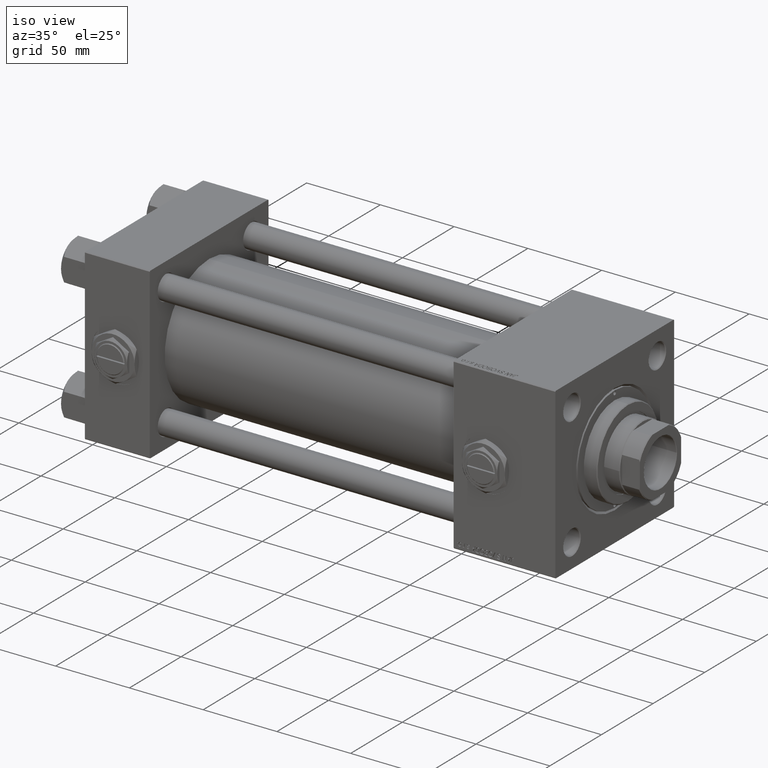
[diagram: clean part render]
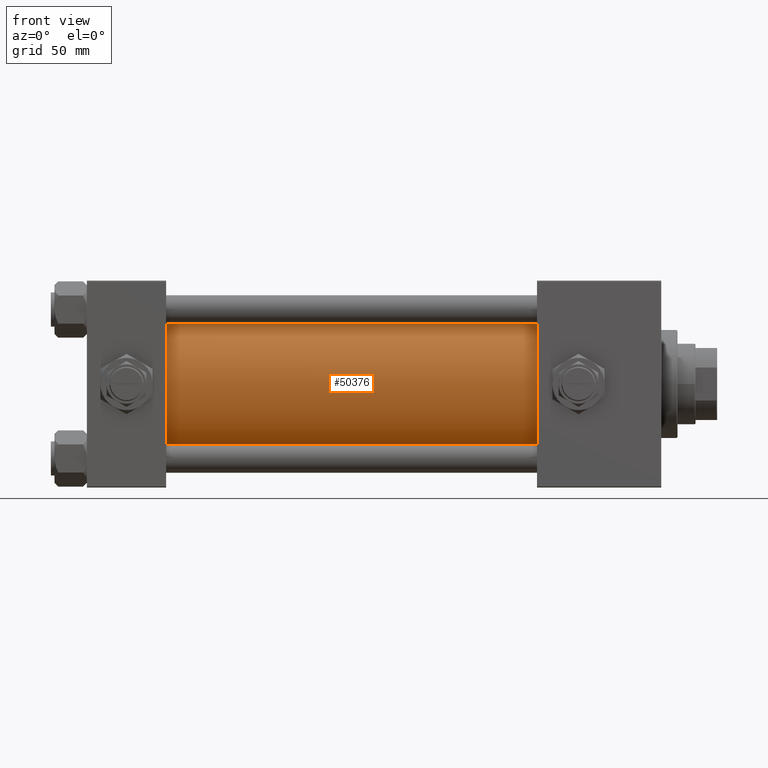
[diagram: tour spotlight — one face highlighted and labeled with its STEP entity id]
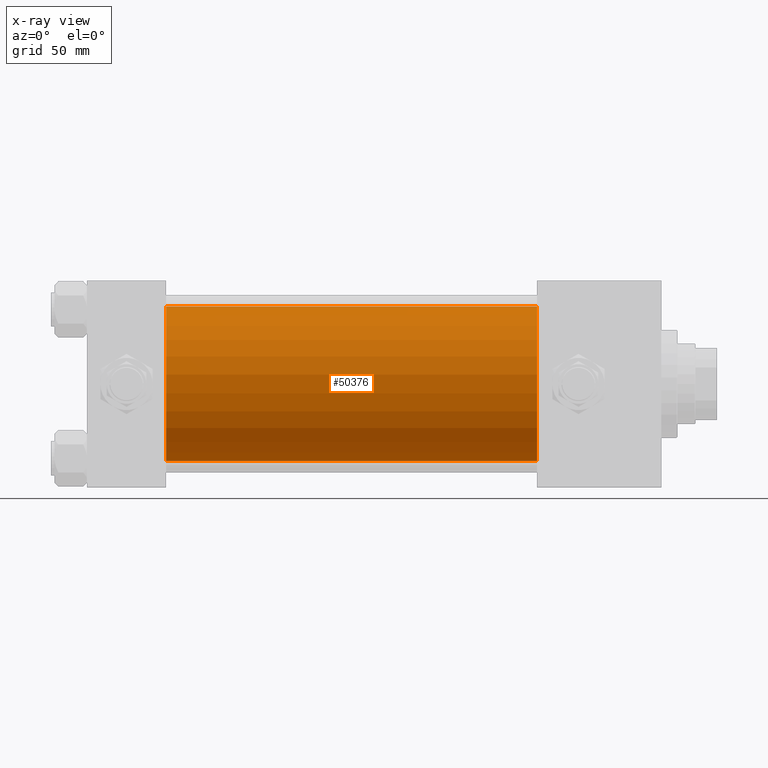
[diagram: x-ray of the same camera — body ghosted, this tour face saturated]
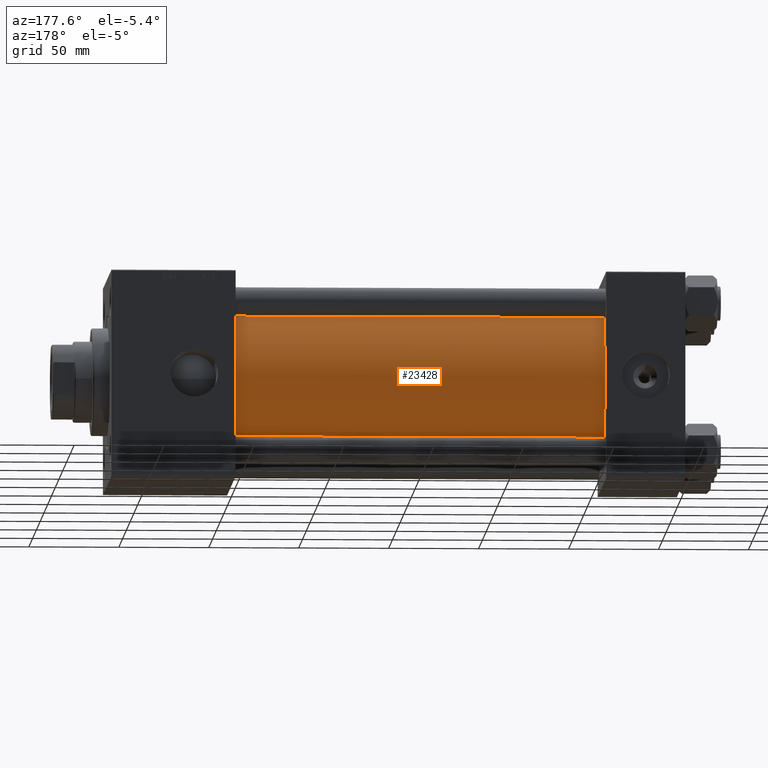
[diagram: tour spotlight — one face highlighted and labeled with its STEP entity id]
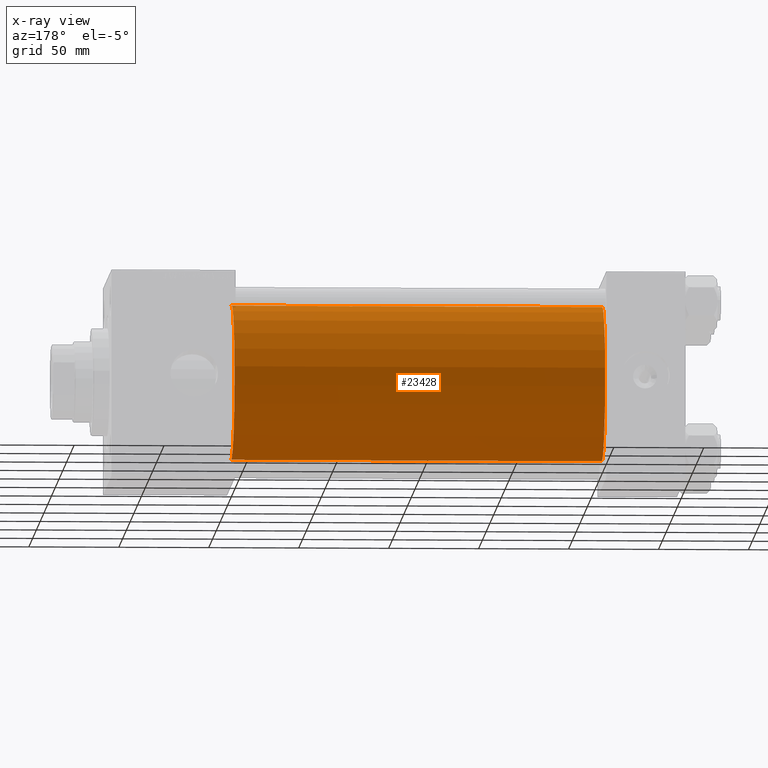
[diagram: x-ray of the same camera — body ghosted, this tour face saturated]
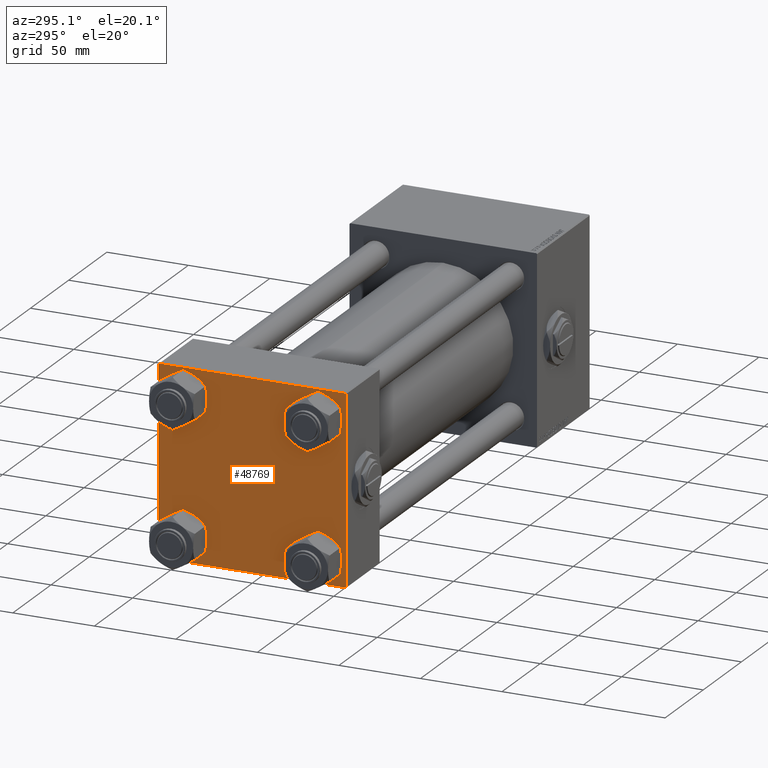
[diagram: tour spotlight — one face highlighted and labeled with its STEP entity id]
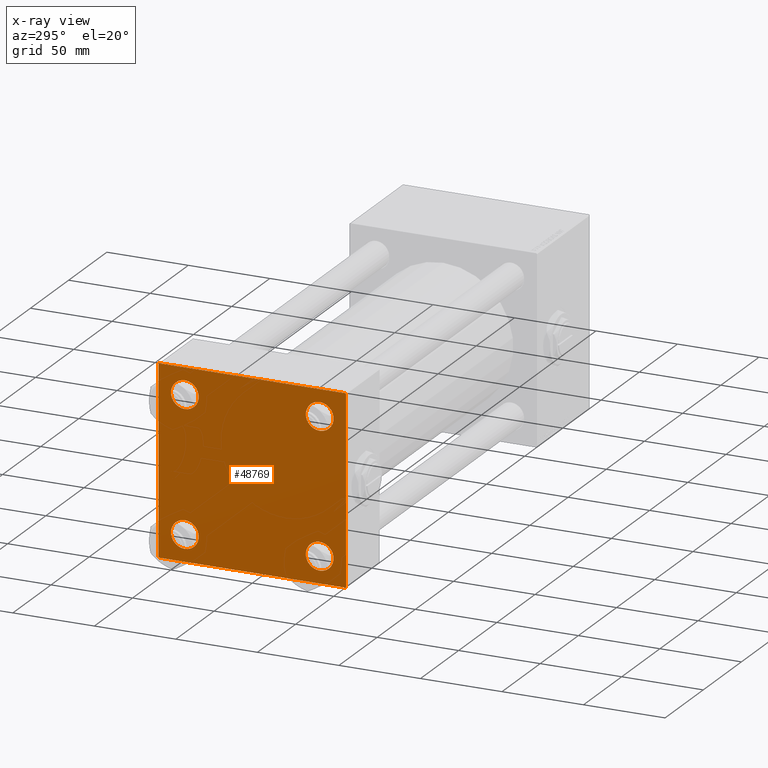
[diagram: x-ray of the same camera — body ghosted, this tour face saturated]
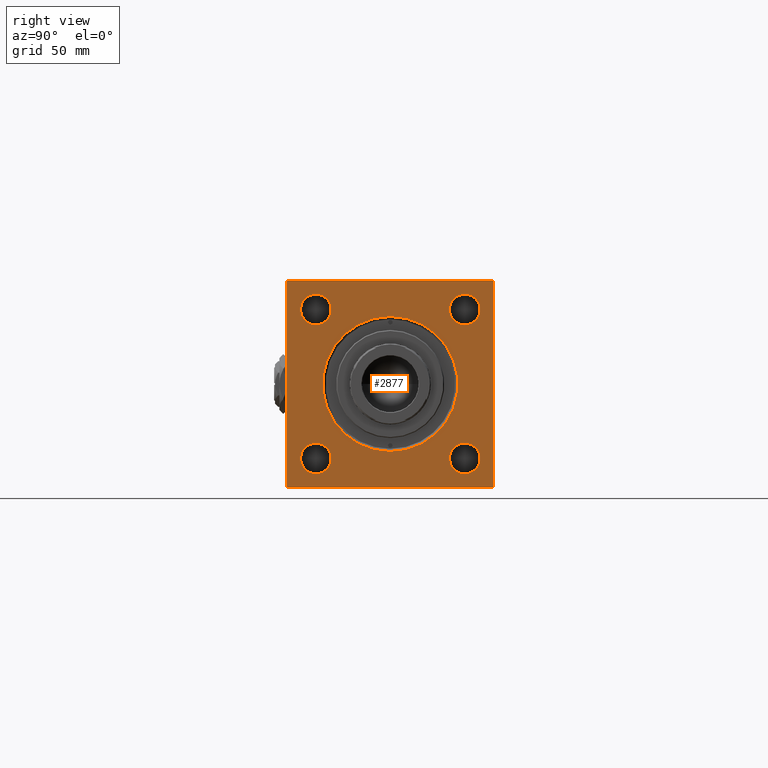
[diagram: tour spotlight — one face highlighted and labeled with its STEP entity id]
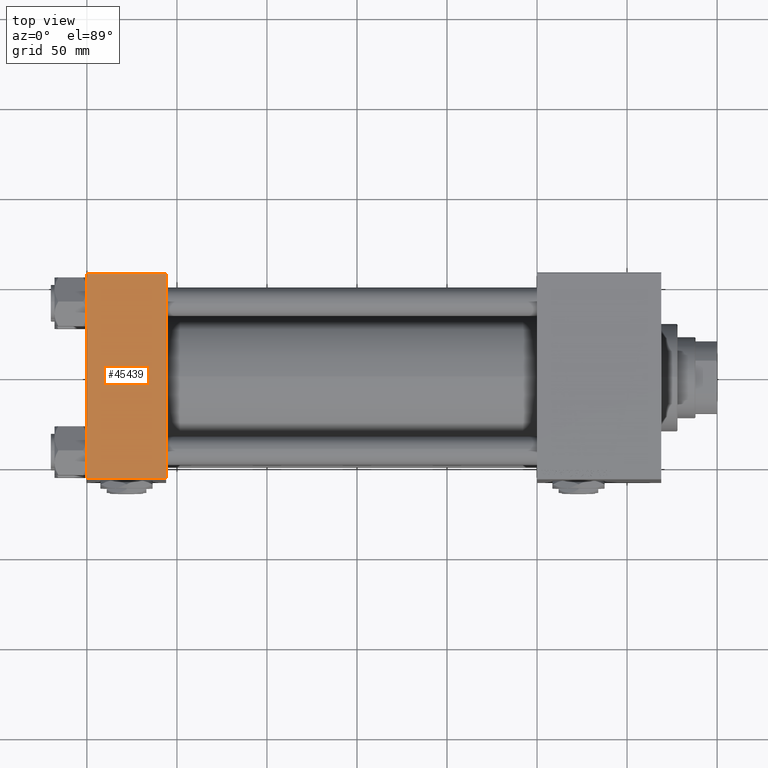
[diagram: tour spotlight — one face highlighted and labeled with its STEP entity id]
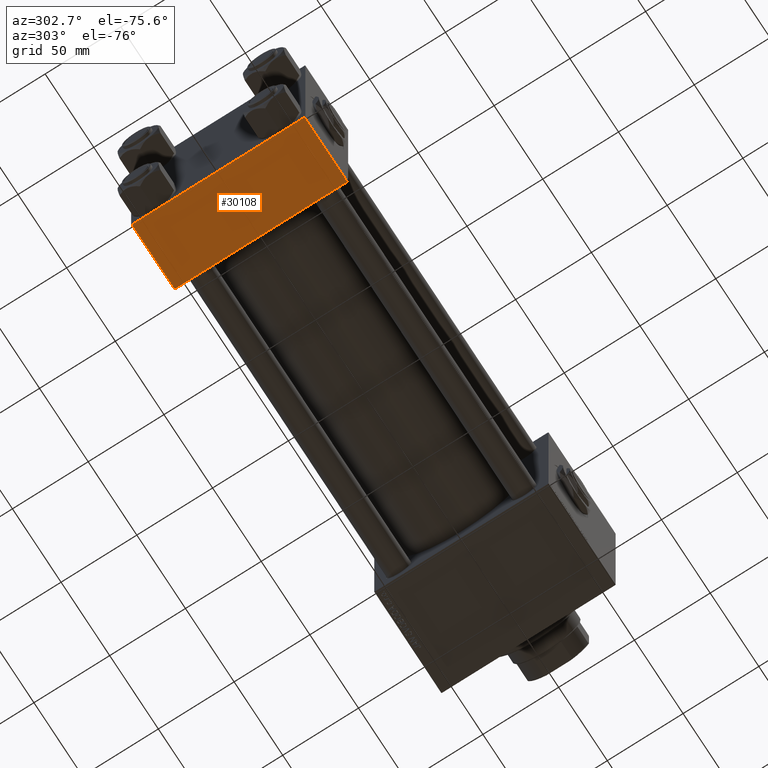
[diagram: tour spotlight — one face highlighted and labeled with its STEP entity id]
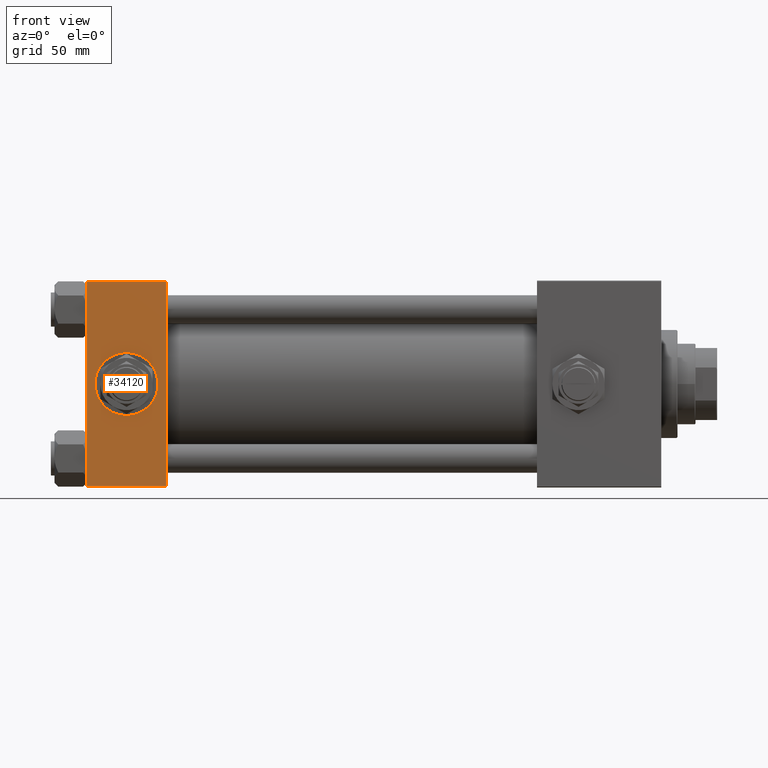
[diagram: tour spotlight — one face highlighted and labeled with its STEP entity id]
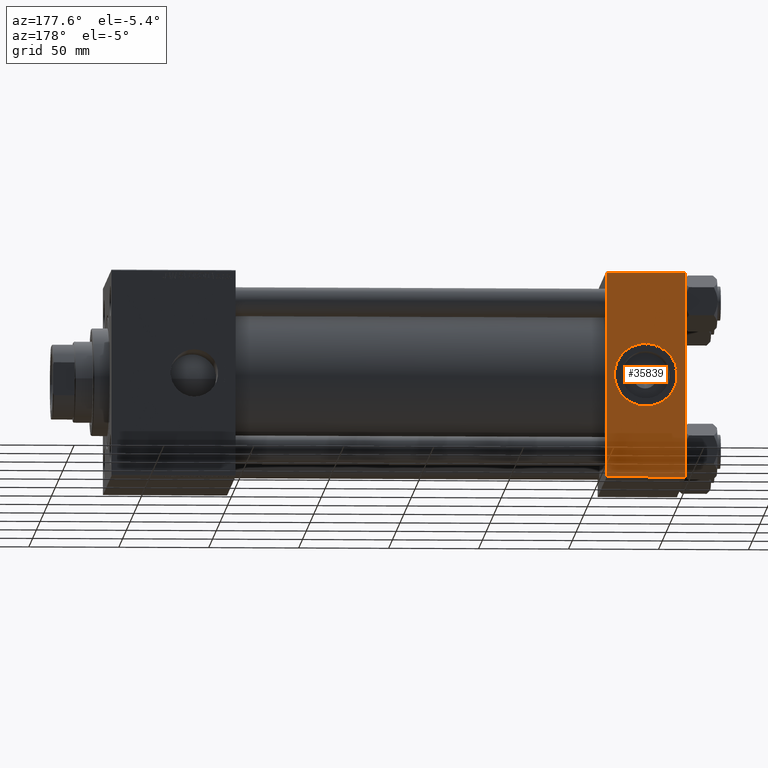
[diagram: tour spotlight — one face highlighted and labeled with its STEP entity id]
A machine part: a face-by-face anatomy tour. The part has 1303 B-rep faces; the first image is the clean iso view, then the 8 largest visible faces are spotlighted one at a time (largest first), each with its STEP entity span.

Face 1 — front view, entity #50376. An x-ray twin of the same camera follows (body ghosted, this face saturated) — the face is partly hidden behind the body. In plain terms, the highlighted cylindrical surface (partial cylindrical patch) has radius 43 mm, axis along (-1, -0, -0).
Definition (entity closure, byte-faithful):
#370 = DIRECTION ( 'NONE',  ( 1.000000000000000000, 0.000000000000000000, 0.000000000000000000 ) ) ;
#1475 = VERTEX_POINT ( 'NONE', #41350 ) ;
#2061 = EDGE_CURVE ( 'NONE', #49368, #8360, #33152, .T. ) ;
#3860 = CARTESIAN_POINT ( 'NONE',  ( 250.0000000000000000, -2.602085213965210642E-15, 0.000000000000000000 ) ) ;
#4079 = DIRECTION ( 'NONE',  ( 0.000000000000000000, 0.000000000000000000, 1.000000000000000000 ) ) ;
#6120 = ORIENTED_EDGE ( 'NONE', *, *, #35254, .T. ) ;
#6446 = CARTESIAN_POINT ( 'NONE',  ( 250.0000000000000000, -2.602085213965210642E-15, 43.00000000000000000 ) ) ;
#6537 = VECTOR ( 'NONE', #38216, 1000.000000000000000 ) ;
#6977 = LINE ( 'NONE', #6446, #6537 ) ;
#7298 = CYLINDRICAL_SURFACE ( 'NONE', #35507, 43.00000000000000000 ) ;
#7823 = DIRECTION ( 'NONE',  ( -1.000000000000000000, -0.000000000000000000, -0.000000000000000000 ) ) ;
#8292 = ORIENTED_EDGE ( 'NONE', *, *, #50975, .T. ) ;
#8360 = VERTEX_POINT ( 'NONE', #50004 ) ;
#19317 = FACE_OUTER_BOUND ( 'NONE', #49212, .T. ) ;
#20075 = DIRECTION ( 'NONE',  ( 0.000000000000000000, 0.000000000000000000, 1.000000000000000000 ) ) ;
#22447 = DIRECTION ( 'NONE',  ( -1.000000000000000000, -0.000000000000000000, -0.000000000000000000 ) ) ;
#23585 = CARTESIAN_POINT ( 'NONE',  ( 250.0000000000000000, -2.602085213965210642E-15, 0.000000000000000000 ) ) ;
#24984 = EDGE_CURVE ( 'NONE', #1475, #49368, #49944, .T. ) ;
#25295 = CARTESIAN_POINT ( 'NONE',  ( 43.99999999999998579, -2.602085213965210642E-15, 43.00000000000000000 ) ) ;
#25719 = AXIS2_PLACEMENT_3D ( 'NONE', #32869, #31821, #20075 ) ;
#27898 = DIRECTION ( 'NONE',  ( 0.000000000000000000, 0.000000000000000000, -1.000000000000000000 ) ) ;
#31821 = DIRECTION ( 'NONE',  ( 1.000000000000000000, -0.000000000000000000, 0.000000000000000000 ) ) ;
#32869 = CARTESIAN_POINT ( 'NONE',  ( 43.99999999999998579, -2.602085213965210642E-15, 0.000000000000000000 ) ) ;
#33152 = LINE ( 'NONE', #50771, #33193 ) ;
#33193 = VECTOR ( 'NONE', #22447, 1000.000000000000000 ) ;
#35254 = EDGE_CURVE ( 'NONE', #51569, #8360, #49631, .T. ) ;
#35507 = AXIS2_PLACEMENT_3D ( 'NONE', #23585, #7823, #4079 ) ;
#38216 = DIRECTION ( 'NONE',  ( -1.000000000000000000, -0.000000000000000000, -0.000000000000000000 ) ) ;
#39700 = AXIS2_PLACEMENT_3D ( 'NONE', #3860, #370, #27898 ) ;
#41350 = CARTESIAN_POINT ( 'NONE',  ( 250.0000000000000000, -2.602085213965210642E-15, 43.00000000000000000 ) ) ;
#45660 = ORIENTED_EDGE ( 'NONE', *, *, #2061, .F. ) ;
#49212 = EDGE_LOOP ( 'NONE', ( #45660, #49367, #8292, #6120 ) ) ;
#49367 = ORIENTED_EDGE ( 'NONE', *, *, #24984, .F. ) ;
#49368 = VERTEX_POINT ( 'NONE', #51710 ) ;
#49631 = CIRCLE ( 'NONE', #25719, 43.00000000000000000 ) ;
#49944 = CIRCLE ( 'NONE', #39700, 43.00000000000000000 ) ;
#50004 = CARTESIAN_POINT ( 'NONE',  ( 43.99999999999998579, 2.663896022368408223E-15, -43.00000000000000000 ) ) ;
#50376 = ADVANCED_FACE ( 'NONE', ( #19317 ), #7298, .T. ) ;
#50771 = CARTESIAN_POINT ( 'NONE',  ( 250.0000000000000000, 2.663896022368408223E-15, -43.00000000000000000 ) ) ;
#50975 = EDGE_CURVE ( 'NONE', #1475, #51569, #6977, .T. ) ;
#51569 = VERTEX_POINT ( 'NONE', #25295 ) ;
#51710 = CARTESIAN_POINT ( 'NONE',  ( 250.0000000000000000, 2.663896022368408223E-15, -43.00000000000000000 ) ) ;

Face 2 — auxiliary view, entity #23428. An x-ray twin of the same camera follows (body ghosted, this face saturated) — the face is partly hidden behind the body. In plain terms, the highlighted cylindrical surface (partial cylindrical patch) has radius 43 mm, axis along (-1, -0, -0).
Definition (entity closure, byte-faithful):
#1475 = VERTEX_POINT ( 'NONE', #41350 ) ;
#2061 = EDGE_CURVE ( 'NONE', #49368, #8360, #33152, .T. ) ;
#2850 = ORIENTED_EDGE ( 'NONE', *, *, #27557, .T. ) ;
#2866 = DIRECTION ( 'NONE',  ( 0.000000000000000000, 0.000000000000000000, 1.000000000000000000 ) ) ;
#6341 = AXIS2_PLACEMENT_3D ( 'NONE', #32246, #35984, #49079 ) ;
#6446 = CARTESIAN_POINT ( 'NONE',  ( 250.0000000000000000, -2.602085213965210642E-15, 43.00000000000000000 ) ) ;
#6537 = VECTOR ( 'NONE', #38216, 1000.000000000000000 ) ;
#6977 = LINE ( 'NONE', #6446, #6537 ) ;
#8255 = CIRCLE ( 'NONE', #16787, 43.00000000000000000 ) ;
#8360 = VERTEX_POINT ( 'NONE', #50004 ) ;
#13682 = CARTESIAN_POINT ( 'NONE',  ( 250.0000000000000000, -2.602085213965210642E-15, 0.000000000000000000 ) ) ;
#16787 = AXIS2_PLACEMENT_3D ( 'NONE', #31171, #47473, #2866 ) ;
#22447 = DIRECTION ( 'NONE',  ( -1.000000000000000000, -0.000000000000000000, -0.000000000000000000 ) ) ;
#23428 = ADVANCED_FACE ( 'NONE', ( #40691 ), #24929, .T. ) ;
#24929 = CYLINDRICAL_SURFACE ( 'NONE', #34542, 43.00000000000000000 ) ;
#25295 = CARTESIAN_POINT ( 'NONE',  ( 43.99999999999998579, -2.602085213965210642E-15, 43.00000000000000000 ) ) ;
#27557 = EDGE_CURVE ( 'NONE', #8360, #51569, #8255, .T. ) ;
#29370 = CIRCLE ( 'NONE', #6341, 43.00000000000000000 ) ;
#31171 = CARTESIAN_POINT ( 'NONE',  ( 43.99999999999998579, -2.602085213965210642E-15, 0.000000000000000000 ) ) ;
#32246 = CARTESIAN_POINT ( 'NONE',  ( 250.0000000000000000, -2.602085213965210642E-15, 0.000000000000000000 ) ) ;
#33152 = LINE ( 'NONE', #50771, #33193 ) ;
#33193 = VECTOR ( 'NONE', #22447, 1000.000000000000000 ) ;
#34542 = AXIS2_PLACEMENT_3D ( 'NONE', #13682, #45220, #45749 ) ;
#35984 = DIRECTION ( 'NONE',  ( 1.000000000000000000, 0.000000000000000000, 0.000000000000000000 ) ) ;
#38216 = DIRECTION ( 'NONE',  ( -1.000000000000000000, -0.000000000000000000, -0.000000000000000000 ) ) ;
#40691 = FACE_OUTER_BOUND ( 'NONE', #43405, .T. ) ;
#41350 = CARTESIAN_POINT ( 'NONE',  ( 250.0000000000000000, -2.602085213965210642E-15, 43.00000000000000000 ) ) ;
#43405 = EDGE_LOOP ( 'NONE', ( #50648, #50166, #2850, #49881 ) ) ;
#44471 = EDGE_CURVE ( 'NONE', #49368, #1475, #29370, .T. ) ;
#45220 = DIRECTION ( 'NONE',  ( -1.000000000000000000, -0.000000000000000000, -0.000000000000000000 ) ) ;
#45749 = DIRECTION ( 'NONE',  ( 0.000000000000000000, 0.000000000000000000, 1.000000000000000000 ) ) ;
#47473 = DIRECTION ( 'NONE',  ( 1.000000000000000000, -0.000000000000000000, 0.000000000000000000 ) ) ;
#49079 = DIRECTION ( 'NONE',  ( 0.000000000000000000, 0.000000000000000000, -1.000000000000000000 ) ) ;
#49368 = VERTEX_POINT ( 'NONE', #51710 ) ;
#49881 = ORIENTED_EDGE ( 'NONE', *, *, #50975, .F. ) ;
#50004 = CARTESIAN_POINT ( 'NONE',  ( 43.99999999999998579, 2.663896022368408223E-15, -43.00000000000000000 ) ) ;
#50166 = ORIENTED_EDGE ( 'NONE', *, *, #2061, .T. ) ;
#50648 = ORIENTED_EDGE ( 'NONE', *, *, #44471, .F. ) ;
#50771 = CARTESIAN_POINT ( 'NONE',  ( 250.0000000000000000, 2.663896022368408223E-15, -43.00000000000000000 ) ) ;
#50975 = EDGE_CURVE ( 'NONE', #1475, #51569, #6977, .T. ) ;
#51569 = VERTEX_POINT ( 'NONE', #25295 ) ;
#51710 = CARTESIAN_POINT ( 'NONE',  ( 250.0000000000000000, 2.663896022368408223E-15, -43.00000000000000000 ) ) ;

Face 3 — auxiliary view, entity #48769. An x-ray twin of the same camera follows (body ghosted, this face saturated) — the face is partly hidden behind the body. In plain terms, the highlighted planar face has unit normal (-1, 0, 0).
Definition (entity closure, byte-faithful):
#149 = ORIENTED_EDGE ( 'NONE', *, *, #30968, .F. ) ;
#270 = EDGE_LOOP ( 'NONE', ( #36978, #52524 ) ) ;
#632 = CARTESIAN_POINT ( 'NONE',  ( 0.000000000000000000, 41.34999999999999432, -41.35000000000000142 ) ) ;
#1173 = EDGE_CURVE ( 'NONE', #3098, #27415, #33658, .T. ) ;
#1867 = VERTEX_POINT ( 'NONE', #11032 ) ;
#2163 = CARTESIAN_POINT ( 'NONE',  ( 0.000000000000000000, 57.49999999999999289, -57.00000000000000711 ) ) ;
#3098 = VERTEX_POINT ( 'NONE', #4535 ) ;
#3807 = ORIENTED_EDGE ( 'NONE', *, *, #34464, .T. ) ;
#4535 = CARTESIAN_POINT ( 'NONE',  ( 0.000000000000000000, 57.00000000000000711, 57.50000000000000711 ) ) ;
#4804 = EDGE_CURVE ( 'NONE', #12306, #33489, #8450, .T. ) ;
#5926 = VECTOR ( 'NONE', #21382, 1000.000000000000114 ) ;
#6953 = DIRECTION ( 'NONE',  ( 0.000000000000000000, 0.000000000000000000, 1.000000000000000000 ) ) ;
#7313 = VECTOR ( 'NONE', #28176, 1000.000000000000114 ) ;
#7697 = LINE ( 'NONE', #23976, #36183 ) ;
#7911 = CIRCLE ( 'NONE', #28385, 8.499999999999992895 ) ;
#7950 = DIRECTION ( 'NONE',  ( 0.000000000000000000, 0.000000000000000000, -1.000000000000000000 ) ) ;
#8329 = CARTESIAN_POINT ( 'NONE',  ( 0.000000000000000000, -57.50000000000000711, 57.00000000000000711 ) ) ;
#8450 = CIRCLE ( 'NONE', #26320, 8.499999999999992895 ) ;
#8736 = LINE ( 'NONE', #11956, #11793 ) ;
#8783 = DIRECTION ( 'NONE',  ( -1.000000000000000000, 0.000000000000000000, -0.000000000000000000 ) ) ;
#9047 = FACE_BOUND ( 'NONE', #16436, .T. ) ;
#9099 = CARTESIAN_POINT ( 'NONE',  ( 0.000000000000000000, 57.25000000000081712, -57.24999999999922551 ) ) ;
#9751 = CIRCLE ( 'NONE', #39588, 8.499999999999992895 ) ;
#9803 = ORIENTED_EDGE ( 'NONE', *, *, #44560, .T. ) ;
#9832 = CARTESIAN_POINT ( 'NONE',  ( 0.000000000000000000, 0.000000000000000000, 0.000000000000000000 ) ) ;
#10524 = CARTESIAN_POINT ( 'NONE',  ( 0.000000000000000000, 41.34999999999999432, -41.35000000000000142 ) ) ;
#10550 = CARTESIAN_POINT ( 'NONE',  ( 0.000000000000000000, 41.34999999999999432, -49.85000000000000142 ) ) ;
#10954 = ORIENTED_EDGE ( 'NONE', *, *, #19065, .T. ) ;
#10990 = DIRECTION ( 'NONE',  ( 1.000000000000000000, -0.000000000000000000, 0.000000000000000000 ) ) ;
#11032 = CARTESIAN_POINT ( 'NONE',  ( 0.000000000000000000, -57.00000000000000711, -57.50000000000000711 ) ) ;
#11457 = CARTESIAN_POINT ( 'NONE',  ( 0.000000000000000000, 41.34999999999999432, 32.85000000000000853 ) ) ;
#11793 = VECTOR ( 'NONE', #7950, 1000.000000000000000 ) ;
#11956 = CARTESIAN_POINT ( 'NONE',  ( 0.000000000000000000, -57.50000000000000711, 57.49999999999999289 ) ) ;
#12306 = VERTEX_POINT ( 'NONE', #16176 ) ;
#12872 = VERTEX_POINT ( 'NONE', #11457 ) ;
#13040 = PLANE ( 'NONE',  #20115 ) ;
#13536 = ORIENTED_EDGE ( 'NONE', *, *, #4804, .T. ) ;
#13991 = CARTESIAN_POINT ( 'NONE',  ( 0.000000000000000000, -41.34999999999998721, 32.85000000000001563 ) ) ;
#14347 = CIRCLE ( 'NONE', #20339, 8.499999999999992895 ) ;
#15278 = VECTOR ( 'NONE', #20052, 1000.000000000000114 ) ;
#15344 = VERTEX_POINT ( 'NONE', #41245 ) ;
#15630 = LINE ( 'NONE', #40984, #7313 ) ;
#15721 = VECTOR ( 'NONE', #28687, 1000.000000000000114 ) ;
#16093 = DIRECTION ( 'NONE',  ( 1.000000000000000000, -0.000000000000000000, 0.000000000000000000 ) ) ;
#16176 = CARTESIAN_POINT ( 'NONE',  ( 0.000000000000000000, -41.34999999999998721, -49.85000000000000853 ) ) ;
#16350 = DIRECTION ( 'NONE',  ( 0.000000000000000000, 0.000000000000000000, 1.000000000000000000 ) ) ;
#16436 = EDGE_LOOP ( 'NONE', ( #38033, #10954 ) ) ;
#16575 = AXIS2_PLACEMENT_3D ( 'NONE', #19046, #31064, #42797 ) ;
#17589 = FACE_BOUND ( 'NONE', #22558, .T. ) ;
#17844 = FACE_OUTER_BOUND ( 'NONE', #51025, .T. ) ;
#18268 = DIRECTION ( 'NONE',  ( 0.000000000000000000, 0.000000000000000000, 1.000000000000000000 ) ) ;
#18516 = EDGE_CURVE ( 'NONE', #25564, #1867, #27512, .T. ) ;
#19046 = CARTESIAN_POINT ( 'NONE',  ( 0.000000000000000000, -41.34999999999998721, 41.35000000000000853 ) ) ;
#19065 = EDGE_CURVE ( 'NONE', #32487, #45191, #36191, .T. ) ;
#19198 = EDGE_CURVE ( 'NONE', #52588, #12872, #9751, .T. ) ;
#19333 = DIRECTION ( 'NONE',  ( 1.000000000000000000, -0.000000000000000000, 0.000000000000000000 ) ) ;
#19447 = VERTEX_POINT ( 'NONE', #38153 ) ;
#19784 = DIRECTION ( 'NONE',  ( 0.000000000000000000, 0.000000000000000000, 1.000000000000000000 ) ) ;
#19977 = DIRECTION ( 'NONE',  ( 0.000000000000000000, 0.000000000000000000, -1.000000000000000000 ) ) ;
#20052 = DIRECTION ( 'NONE',  ( -0.000000000000000000, 0.7071067811865376918, 0.7071067811865573427 ) ) ;
#20069 = DIRECTION ( 'NONE',  ( 0.000000000000000000, 0.000000000000000000, 1.000000000000000000 ) ) ;
#20115 = AXIS2_PLACEMENT_3D ( 'NONE', #9832, #8783, #21593 ) ;
#20200 = VERTEX_POINT ( 'NONE', #10550 ) ;
#20339 = AXIS2_PLACEMENT_3D ( 'NONE', #24052, #10990, #19784 ) ;
#20553 = DIRECTION ( 'NONE',  ( 0.000000000000000000, 0.000000000000000000, 1.000000000000000000 ) ) ;
#20953 = ORIENTED_EDGE ( 'NONE', *, *, #22110, .T. ) ;
#21066 = FACE_BOUND ( 'NONE', #270, .T. ) ;
#21190 = VECTOR ( 'NONE', #42196, 1000.000000000000000 ) ;
#21382 = DIRECTION ( 'NONE',  ( -0.000000000000000000, -0.7071067811865376918, -0.7071067811865573427 ) ) ;
#21593 = DIRECTION ( 'NONE',  ( -0.000000000000000000, 0.000000000000000000, 1.000000000000000000 ) ) ;
#22110 = EDGE_CURVE ( 'NONE', #3098, #19447, #15630, .T. ) ;
#22176 = CARTESIAN_POINT ( 'NONE',  ( 0.000000000000000000, 57.49999999999999289, 57.50000000000000711 ) ) ;
#22558 = EDGE_LOOP ( 'NONE', ( #37530, #13536 ) ) ;
#23976 = CARTESIAN_POINT ( 'NONE',  ( 0.000000000000000000, 57.49999999999999289, 57.50000000000000711 ) ) ;
#24052 = CARTESIAN_POINT ( 'NONE',  ( 0.000000000000000000, 41.34999999999999432, 41.35000000000000142 ) ) ;
#24273 = VECTOR ( 'NONE', #40311, 1000.000000000000000 ) ;
#24280 = VERTEX_POINT ( 'NONE', #25202 ) ;
#24704 = ORIENTED_EDGE ( 'NONE', *, *, #18516, .T. ) ;
#25202 = CARTESIAN_POINT ( 'NONE',  ( 0.000000000000000000, 41.34999999999999432, -32.85000000000000853 ) ) ;
#25382 = AXIS2_PLACEMENT_3D ( 'NONE', #10524, #19333, #18268 ) ;
#25560 = CIRCLE ( 'NONE', #45185, 8.499999999999992895 ) ;
#25564 = VERTEX_POINT ( 'NONE', #47973 ) ;
#26320 = AXIS2_PLACEMENT_3D ( 'NONE', #41882, #37613, #20553 ) ;
#27415 = VERTEX_POINT ( 'NONE', #28804 ) ;
#27499 = CARTESIAN_POINT ( 'NONE',  ( 0.000000000000000000, -41.34999999999998721, 41.35000000000000853 ) ) ;
#27512 = LINE ( 'NONE', #47825, #24273 ) ;
#27923 = CIRCLE ( 'NONE', #25382, 8.499999999999992895 ) ;
#28176 = DIRECTION ( 'NONE',  ( 0.000000000000000000, 0.7071067811865573427, -0.7071067811865376918 ) ) ;
#28337 = DIRECTION ( 'NONE',  ( 1.000000000000000000, -0.000000000000000000, 0.000000000000000000 ) ) ;
#28385 = AXIS2_PLACEMENT_3D ( 'NONE', #27499, #43522, #6953 ) ;
#28687 = DIRECTION ( 'NONE',  ( 0.000000000000000000, -0.7071067811865474617, 0.7071067811865474617 ) ) ;
#28804 = CARTESIAN_POINT ( 'NONE',  ( 0.000000000000000000, -57.00000000000003553, 57.49999999999999289 ) ) ;
#29169 = EDGE_CURVE ( 'NONE', #20200, #24280, #27923, .T. ) ;
#29386 = LINE ( 'NONE', #9099, #5926 ) ;
#30090 = ORIENTED_EDGE ( 'NONE', *, *, #31622, .T. ) ;
#30968 = EDGE_CURVE ( 'NONE', #45820, #15344, #8736, .T. ) ;
#31064 = DIRECTION ( 'NONE',  ( 1.000000000000000000, -0.000000000000000000, 0.000000000000000000 ) ) ;
#31548 = EDGE_CURVE ( 'NONE', #12872, #52588, #14347, .T. ) ;
#31622 = EDGE_CURVE ( 'NONE', #45820, #27415, #43818, .T. ) ;
#32452 = ORIENTED_EDGE ( 'NONE', *, *, #45532, .T. ) ;
#32487 = VERTEX_POINT ( 'NONE', #13991 ) ;
#33339 = EDGE_LOOP ( 'NONE', ( #45984, #46302 ) ) ;
#33489 = VERTEX_POINT ( 'NONE', #49763 ) ;
#33658 = LINE ( 'NONE', #22176, #21190 ) ;
#33663 = CIRCLE ( 'NONE', #37901, 8.499999999999992895 ) ;
#34332 = EDGE_CURVE ( 'NONE', #33489, #12306, #25560, .T. ) ;
#34464 = EDGE_CURVE ( 'NONE', #47708, #25564, #29386, .T. ) ;
#35806 = CARTESIAN_POINT ( 'NONE',  ( -0.000000000000000000, -57.25000000000081712, 57.24999999999922551 ) ) ;
#36183 = VECTOR ( 'NONE', #19977, 1000.000000000000000 ) ;
#36191 = CIRCLE ( 'NONE', #16575, 8.499999999999992895 ) ;
#36423 = LINE ( 'NONE', #49258, #15721 ) ;
#36860 = CARTESIAN_POINT ( 'NONE',  ( 0.000000000000000000, -41.34999999999998721, -41.35000000000000853 ) ) ;
#36978 = ORIENTED_EDGE ( 'NONE', *, *, #19198, .T. ) ;
#37530 = ORIENTED_EDGE ( 'NONE', *, *, #34332, .T. ) ;
#37536 = CARTESIAN_POINT ( 'NONE',  ( 0.000000000000000000, -41.34999999999998721, 49.85000000000000853 ) ) ;
#37613 = DIRECTION ( 'NONE',  ( 1.000000000000000000, -0.000000000000000000, 0.000000000000000000 ) ) ;
#37901 = AXIS2_PLACEMENT_3D ( 'NONE', #632, #41227, #44708 ) ;
#38033 = ORIENTED_EDGE ( 'NONE', *, *, #41788, .T. ) ;
#38153 = CARTESIAN_POINT ( 'NONE',  ( 0.000000000000000000, 57.49999999999999289, 57.00000000000003553 ) ) ;
#39588 = AXIS2_PLACEMENT_3D ( 'NONE', #52694, #16093, #16350 ) ;
#40311 = DIRECTION ( 'NONE',  ( 0.000000000000000000, -1.000000000000000000, -1.206764157201257045E-16 ) ) ;
#40984 = CARTESIAN_POINT ( 'NONE',  ( 0.000000000000000000, 57.24999999999922551, 57.25000000000081712 ) ) ;
#41172 = ORIENTED_EDGE ( 'NONE', *, *, #1173, .F. ) ;
#41227 = DIRECTION ( 'NONE',  ( 1.000000000000000000, -0.000000000000000000, 0.000000000000000000 ) ) ;
#41245 = CARTESIAN_POINT ( 'NONE',  ( 0.000000000000000000, -57.50000000000000711, -57.00000000000000711 ) ) ;
#41788 = EDGE_CURVE ( 'NONE', #45191, #32487, #7911, .T. ) ;
#41882 = CARTESIAN_POINT ( 'NONE',  ( 0.000000000000000000, -41.34999999999998721, -41.35000000000000853 ) ) ;
#42196 = DIRECTION ( 'NONE',  ( 0.000000000000000000, -1.000000000000000000, -1.206764157201257045E-16 ) ) ;
#42797 = DIRECTION ( 'NONE',  ( 0.000000000000000000, 0.000000000000000000, 1.000000000000000000 ) ) ;
#43522 = DIRECTION ( 'NONE',  ( 1.000000000000000000, -0.000000000000000000, 0.000000000000000000 ) ) ;
#43818 = LINE ( 'NONE', #35806, #15278 ) ;
#44560 = EDGE_CURVE ( 'NONE', #19447, #47708, #7697, .T. ) ;
#44708 = DIRECTION ( 'NONE',  ( 0.000000000000000000, 0.000000000000000000, 1.000000000000000000 ) ) ;
#45185 = AXIS2_PLACEMENT_3D ( 'NONE', #36860, #28337, #20069 ) ;
#45191 = VERTEX_POINT ( 'NONE', #37536 ) ;
#45532 = EDGE_CURVE ( 'NONE', #1867, #15344, #36423, .T. ) ;
#45820 = VERTEX_POINT ( 'NONE', #8329 ) ;
#45984 = ORIENTED_EDGE ( 'NONE', *, *, #46343, .T. ) ;
#46302 = ORIENTED_EDGE ( 'NONE', *, *, #29169, .T. ) ;
#46343 = EDGE_CURVE ( 'NONE', #24280, #20200, #33663, .T. ) ;
#46908 = CARTESIAN_POINT ( 'NONE',  ( 0.000000000000000000, 41.34999999999999432, 49.85000000000000142 ) ) ;
#47708 = VERTEX_POINT ( 'NONE', #2163 ) ;
#47825 = CARTESIAN_POINT ( 'NONE',  ( 0.000000000000000000, 57.49999999999999289, -57.49999999999999289 ) ) ;
#47973 = CARTESIAN_POINT ( 'NONE',  ( 0.000000000000000000, 57.00000000000002132, -57.49999999999999289 ) ) ;
#48769 = ADVANCED_FACE ( 'NONE', ( #9047, #17589, #50438, #21066, #17844 ), #13040, .T. ) ;
#49258 = CARTESIAN_POINT ( 'NONE',  ( 0.000000000000000000, -57.25000000000000711, -57.25000000000000711 ) ) ;
#49763 = CARTESIAN_POINT ( 'NONE',  ( 0.000000000000000000, -41.34999999999998721, -32.85000000000001563 ) ) ;
#50438 = FACE_BOUND ( 'NONE', #33339, .T. ) ;
#51025 = EDGE_LOOP ( 'NONE', ( #9803, #3807, #24704, #32452, #149, #30090, #41172, #20953 ) ) ;
#52524 = ORIENTED_EDGE ( 'NONE', *, *, #31548, .T. ) ;
#52588 = VERTEX_POINT ( 'NONE', #46908 ) ;
#52694 = CARTESIAN_POINT ( 'NONE',  ( 0.000000000000000000, 41.34999999999999432, 41.35000000000000142 ) ) ;

Face 4 — right view, entity #2877. In plain terms, the highlighted planar face has unit normal (-1, 0, 0).
Definition (entity closure, byte-faithful):
#32 = CARTESIAN_POINT ( 'NONE',  ( 319.0000000000000000, -57.49999999999999289, -56.99999999999997868 ) ) ;
#53 = VERTEX_POINT ( 'NONE', #15739 ) ;
#208 = AXIS2_PLACEMENT_3D ( 'NONE', #52733, #3582, #19876 ) ;
#1011 = DIRECTION ( 'NONE',  ( -1.000000000000000000, 0.000000000000000000, -0.000000000000000000 ) ) ;
#1156 = CIRCLE ( 'NONE', #3715, 8.500000000000007105 ) ;
#1388 = CIRCLE ( 'NONE', #32076, 8.500000000000007105 ) ;
#1842 = AXIS2_PLACEMENT_3D ( 'NONE', #14420, #22693, #38710 ) ;
#2017 = VERTEX_POINT ( 'NONE', #32 ) ;
#2104 = CARTESIAN_POINT ( 'NONE',  ( 319.0000000000000000, -57.49999999999999289, 57.49999999999999289 ) ) ;
#2240 = CARTESIAN_POINT ( 'NONE',  ( 319.0000000000000000, -57.49999999999999289, 57.00000000000004974 ) ) ;
#2877 = ADVANCED_FACE ( 'NONE', ( #42283, #20687, #9452, #16940, #50067, #29996 ), #29482, .F. ) ;
#3322 = CARTESIAN_POINT ( 'NONE',  ( 319.0000000000000000, 56.99999999999994316, -57.49999999999996447 ) ) ;
#3582 = DIRECTION ( 'NONE',  ( -1.000000000000000000, 0.000000000000000000, -0.000000000000000000 ) ) ;
#3715 = AXIS2_PLACEMENT_3D ( 'NONE', #44563, #52599, #7471 ) ;
#3756 = ORIENTED_EDGE ( 'NONE', *, *, #52389, .T. ) ;
#3806 = VERTEX_POINT ( 'NONE', #31253 ) ;
#4528 = LINE ( 'NONE', #49405, #29438 ) ;
#4631 = VECTOR ( 'NONE', #15329, 1000.000000000000000 ) ;
#4642 = DIRECTION ( 'NONE',  ( 0.000000000000000000, -1.000000000000000000, -1.206764157201257291E-16 ) ) ;
#4714 = CARTESIAN_POINT ( 'NONE',  ( 319.0000000000000000, 57.50000000000000000, -56.99999999999991473 ) ) ;
#4756 = CARTESIAN_POINT ( 'NONE',  ( 319.0000000000000000, -57.00000000000004263, 57.49999999999999289 ) ) ;
#4887 = CARTESIAN_POINT ( 'NONE',  ( 319.0000000000000000, 57.50000000000000000, -57.49999999999996447 ) ) ;
#5502 = LINE ( 'NONE', #4714, #6502 ) ;
#5945 = DIRECTION ( 'NONE',  ( 0.000000000000000000, 0.000000000000000000, 1.000000000000000000 ) ) ;
#6003 = CARTESIAN_POINT ( 'NONE',  ( 319.0000000000000000, 41.34999999999999432, -41.35000000000000142 ) ) ;
#6117 = CIRCLE ( 'NONE', #1842, 8.500000000000007105 ) ;
#6488 = CARTESIAN_POINT ( 'NONE',  ( 319.0000000000000000, 4.592425496802571211E-15, 37.49999999999997868 ) ) ;
#6502 = VECTOR ( 'NONE', #41551, 1000.000000000000114 ) ;
#7155 = EDGE_CURVE ( 'NONE', #36437, #25309, #30803, .T. ) ;
#7471 = DIRECTION ( 'NONE',  ( 0.000000000000000000, 0.000000000000000000, 1.000000000000000000 ) ) ;
#7696 = EDGE_CURVE ( 'NONE', #15004, #20365, #22287, .T. ) ;
#8645 = LINE ( 'NONE', #24937, #45772 ) ;
#9306 = DIRECTION ( 'NONE',  ( 0.000000000000000000, 0.000000000000000000, 1.000000000000000000 ) ) ;
#9452 = FACE_BOUND ( 'NONE', #28988, .T. ) ;
#9675 = CARTESIAN_POINT ( 'NONE',  ( 319.0000000000000000, 41.34999999999999432, -32.84999999999999432 ) ) ;
#10476 = DIRECTION ( 'NONE',  ( -1.000000000000000000, 0.000000000000000000, -0.000000000000000000 ) ) ;
#11120 = EDGE_CURVE ( 'NONE', #49665, #36241, #11203, .T. ) ;
#11203 = CIRCLE ( 'NONE', #23967, 37.49999999999997868 ) ;
#11318 = CIRCLE ( 'NONE', #208, 8.500000000000007105 ) ;
#11387 = VECTOR ( 'NONE', #21178, 1000.000000000000000 ) ;
#11486 = VERTEX_POINT ( 'NONE', #41775 ) ;
#12797 = DIRECTION ( 'NONE',  ( 0.000000000000000000, -0.7071067811865474617, 0.7071067811865474617 ) ) ;
#13014 = VERTEX_POINT ( 'NONE', #4756 ) ;
#13443 = DIRECTION ( 'NONE',  ( -1.000000000000000000, 0.000000000000000000, -0.000000000000000000 ) ) ;
#13707 = DIRECTION ( 'NONE',  ( -1.000000000000000000, 0.000000000000000000, -0.000000000000000000 ) ) ;
#14052 = EDGE_LOOP ( 'NONE', ( #36038, #38821 ) ) ;
#14360 = EDGE_CURVE ( 'NONE', #3806, #23333, #11318, .T. ) ;
#14420 = CARTESIAN_POINT ( 'NONE',  ( 319.0000000000000000, 41.34999999999999432, -41.35000000000000142 ) ) ;
#14481 = EDGE_CURVE ( 'NONE', #36241, #49665, #18979, .T. ) ;
#15004 = VERTEX_POINT ( 'NONE', #36508 ) ;
#15329 = DIRECTION ( 'NONE',  ( 0.000000000000000000, 0.000000000000000000, -1.000000000000000000 ) ) ;
#15425 = ORIENTED_EDGE ( 'NONE', *, *, #40422, .T. ) ;
#15739 = CARTESIAN_POINT ( 'NONE',  ( 319.0000000000000000, 57.50000000000000000, 57.00000000000000711 ) ) ;
#15998 = VECTOR ( 'NONE', #16371, 1000.000000000000000 ) ;
#16165 = VERTEX_POINT ( 'NONE', #2240 ) ;
#16371 = DIRECTION ( 'NONE',  ( -0.000000000000000000, -0.7071067811865524577, -0.7071067811865426878 ) ) ;
#16464 = VERTEX_POINT ( 'NONE', #9675 ) ;
#16478 = DIRECTION ( 'NONE',  ( 0.000000000000000000, 0.000000000000000000, 1.000000000000000000 ) ) ;
#16672 = CARTESIAN_POINT ( 'NONE',  ( 319.0000000000000000, 0.000000000000000000, 0.000000000000000000 ) ) ;
#16826 = VECTOR ( 'NONE', #46452, 1000.000000000000000 ) ;
#16940 = FACE_BOUND ( 'NONE', #18610, .T. ) ;
#17041 = DIRECTION ( 'NONE',  ( -1.000000000000000000, 0.000000000000000000, -0.000000000000000000 ) ) ;
#17463 = CARTESIAN_POINT ( 'NONE',  ( 319.0000000000000000, 41.34999999999999432, 41.35000000000000142 ) ) ;
#17601 = DIRECTION ( 'NONE',  ( 0.000000000000000000, 0.000000000000000000, 1.000000000000000000 ) ) ;
#18040 = CIRCLE ( 'NONE', #27429, 8.500000000000007105 ) ;
#18136 = CARTESIAN_POINT ( 'NONE',  ( 319.0000000000000000, -56.99999999999998579, -57.49999999999997868 ) ) ;
#18224 = CARTESIAN_POINT ( 'NONE',  ( 319.0000000000000000, 0.000000000000000000, 0.000000000000000000 ) ) ;
#18610 = EDGE_LOOP ( 'NONE', ( #42167, #15425 ) ) ;
#18979 = CIRCLE ( 'NONE', #48835, 37.49999999999997868 ) ;
#19876 = DIRECTION ( 'NONE',  ( 0.000000000000000000, 0.000000000000000000, 1.000000000000000000 ) ) ;
#20365 = VERTEX_POINT ( 'NONE', #49786 ) ;
#20456 = EDGE_LOOP ( 'NONE', ( #42952, #39001 ) ) ;
#20555 = CARTESIAN_POINT ( 'NONE',  ( 319.0000000000000000, -41.34999999999999432, -41.35000000000000142 ) ) ;
#20687 = FACE_BOUND ( 'NONE', #20456, .T. ) ;
#20827 = ORIENTED_EDGE ( 'NONE', *, *, #11120, .T. ) ;
#21078 = CARTESIAN_POINT ( 'NONE',  ( 319.0000000000000000, 0.000000000000000000, -37.49999999999997868 ) ) ;
#21178 = DIRECTION ( 'NONE',  ( 0.000000000000000000, -1.000000000000000000, -1.206764157201257291E-16 ) ) ;
#21482 = DIRECTION ( 'NONE',  ( -0.000000000000000000, 0.000000000000000000, 1.000000000000000000 ) ) ;
#21579 = CARTESIAN_POINT ( 'NONE',  ( 319.0000000000000000, 41.34999999999999432, 41.35000000000000142 ) ) ;
#21734 = DIRECTION ( 'NONE',  ( 0.000000000000000000, 0.000000000000000000, 1.000000000000000000 ) ) ;
#22035 = DIRECTION ( 'NONE',  ( -1.000000000000000000, 0.000000000000000000, -0.000000000000000000 ) ) ;
#22285 = ORIENTED_EDGE ( 'NONE', *, *, #39068, .T. ) ;
#22287 = CIRCLE ( 'NONE', #30825, 8.500000000000007105 ) ;
#22674 = ORIENTED_EDGE ( 'NONE', *, *, #44584, .T. ) ;
#22693 = DIRECTION ( 'NONE',  ( -1.000000000000000000, 0.000000000000000000, -0.000000000000000000 ) ) ;
#22909 = EDGE_CURVE ( 'NONE', #25309, #36437, #1388, .T. ) ;
#23333 = VERTEX_POINT ( 'NONE', #39369 ) ;
#23967 = AXIS2_PLACEMENT_3D ( 'NONE', #39989, #52297, #16478 ) ;
#24126 = ORIENTED_EDGE ( 'NONE', *, *, #49090, .T. ) ;
#24247 = EDGE_CURVE ( 'NONE', #11486, #13014, #8645, .T. ) ;
#24937 = CARTESIAN_POINT ( 'NONE',  ( 319.0000000000000000, 57.50000000000000000, 57.50000000000000711 ) ) ;
#25236 = VERTEX_POINT ( 'NONE', #18136 ) ;
#25309 = VERTEX_POINT ( 'NONE', #36254 ) ;
#27429 = AXIS2_PLACEMENT_3D ( 'NONE', #37595, #1011, #9306 ) ;
#27602 = CARTESIAN_POINT ( 'NONE',  ( 319.0000000000000000, 57.50000000000000000, 57.50000000000000711 ) ) ;
#27852 = ORIENTED_EDGE ( 'NONE', *, *, #7696, .T. ) ;
#28341 = CIRCLE ( 'NONE', #39429, 8.500000000000007105 ) ;
#28988 = EDGE_LOOP ( 'NONE', ( #27852, #22285 ) ) ;
#29011 = ORIENTED_EDGE ( 'NONE', *, *, #14481, .T. ) ;
#29200 = EDGE_CURVE ( 'NONE', #13014, #16165, #48175, .T. ) ;
#29438 = VECTOR ( 'NONE', #12797, 1000.000000000000114 ) ;
#29482 = PLANE ( 'NONE',  #45156 ) ;
#29996 = FACE_OUTER_BOUND ( 'NONE', #35805, .T. ) ;
#30676 = LINE ( 'NONE', #2104, #16826 ) ;
#30803 = CIRCLE ( 'NONE', #39302, 8.500000000000007105 ) ;
#30825 = AXIS2_PLACEMENT_3D ( 'NONE', #20555, #45643, #17601 ) ;
#31253 = CARTESIAN_POINT ( 'NONE',  ( 319.0000000000000000, -41.34999999999999432, 32.84999999999999432 ) ) ;
#31494 = VERTEX_POINT ( 'NONE', #34213 ) ;
#31517 = CARTESIAN_POINT ( 'NONE',  ( 319.0000000000000000, 41.34999999999999432, 32.84999999999999432 ) ) ;
#32076 = AXIS2_PLACEMENT_3D ( 'NONE', #21579, #17041, #42382 ) ;
#32428 = ORIENTED_EDGE ( 'NONE', *, *, #24247, .T. ) ;
#32588 = ORIENTED_EDGE ( 'NONE', *, *, #39764, .F. ) ;
#32628 = CARTESIAN_POINT ( 'NONE',  ( 319.0000000000000000, 41.34999999999999432, -49.85000000000001563 ) ) ;
#32896 = EDGE_LOOP ( 'NONE', ( #20827, #29011 ) ) ;
#34213 = CARTESIAN_POINT ( 'NONE',  ( 319.0000000000000000, 57.50000000000000000, -56.99999999999991473 ) ) ;
#34824 = VERTEX_POINT ( 'NONE', #3322 ) ;
#35494 = EDGE_CURVE ( 'NONE', #42881, #16464, #6117, .T. ) ;
#35791 = EDGE_CURVE ( 'NONE', #23333, #3806, #18040, .T. ) ;
#35805 = EDGE_LOOP ( 'NONE', ( #3756, #22674, #32588, #24126, #47338, #37714, #32428, #41411 ) ) ;
#36038 = ORIENTED_EDGE ( 'NONE', *, *, #7155, .T. ) ;
#36241 = VERTEX_POINT ( 'NONE', #6488 ) ;
#36254 = CARTESIAN_POINT ( 'NONE',  ( 319.0000000000000000, 41.34999999999999432, 49.85000000000001563 ) ) ;
#36437 = VERTEX_POINT ( 'NONE', #31517 ) ;
#36508 = CARTESIAN_POINT ( 'NONE',  ( 319.0000000000000000, -41.34999999999999432, -49.85000000000001563 ) ) ;
#36659 = CARTESIAN_POINT ( 'NONE',  ( 319.0000000000000000, -57.49999999999999289, 57.00000000000004974 ) ) ;
#37563 = LINE ( 'NONE', #49345, #43851 ) ;
#37595 = CARTESIAN_POINT ( 'NONE',  ( 319.0000000000000000, -41.34999999999999432, 41.35000000000000142 ) ) ;
#37714 = ORIENTED_EDGE ( 'NONE', *, *, #47100, .T. ) ;
#38710 = DIRECTION ( 'NONE',  ( 0.000000000000000000, 0.000000000000000000, 1.000000000000000000 ) ) ;
#38821 = ORIENTED_EDGE ( 'NONE', *, *, #22909, .T. ) ;
#39001 = ORIENTED_EDGE ( 'NONE', *, *, #35791, .T. ) ;
#39068 = EDGE_CURVE ( 'NONE', #20365, #15004, #1156, .T. ) ;
#39302 = AXIS2_PLACEMENT_3D ( 'NONE', #17463, #13443, #21734 ) ;
#39369 = CARTESIAN_POINT ( 'NONE',  ( 319.0000000000000000, -41.34999999999999432, 49.85000000000001563 ) ) ;
#39429 = AXIS2_PLACEMENT_3D ( 'NONE', #6003, #22035, #46861 ) ;
#39764 = EDGE_CURVE ( 'NONE', #34824, #25236, #49764, .T. ) ;
#39989 = CARTESIAN_POINT ( 'NONE',  ( 319.0000000000000000, 0.000000000000000000, 0.000000000000000000 ) ) ;
#40422 = EDGE_CURVE ( 'NONE', #16464, #42881, #28341, .T. ) ;
#41411 = ORIENTED_EDGE ( 'NONE', *, *, #29200, .T. ) ;
#41551 = DIRECTION ( 'NONE',  ( -0.000000000000000000, 0.7071067811865474617, 0.7071067811865474617 ) ) ;
#41775 = CARTESIAN_POINT ( 'NONE',  ( 319.0000000000000000, 57.00000000000000000, 57.50000000000000711 ) ) ;
#42167 = ORIENTED_EDGE ( 'NONE', *, *, #35494, .T. ) ;
#42283 = FACE_BOUND ( 'NONE', #14052, .T. ) ;
#42382 = DIRECTION ( 'NONE',  ( 0.000000000000000000, 0.000000000000000000, 1.000000000000000000 ) ) ;
#42881 = VERTEX_POINT ( 'NONE', #32628 ) ;
#42952 = ORIENTED_EDGE ( 'NONE', *, *, #14360, .T. ) ;
#43851 = VECTOR ( 'NONE', #49606, 999.9999999999998863 ) ;
#44563 = CARTESIAN_POINT ( 'NONE',  ( 319.0000000000000000, -41.34999999999999432, -41.35000000000000142 ) ) ;
#44584 = EDGE_CURVE ( 'NONE', #2017, #25236, #37563, .T. ) ;
#45156 = AXIS2_PLACEMENT_3D ( 'NONE', #16672, #13707, #21482 ) ;
#45160 = EDGE_CURVE ( 'NONE', #53, #31494, #48169, .T. ) ;
#45643 = DIRECTION ( 'NONE',  ( -1.000000000000000000, 0.000000000000000000, -0.000000000000000000 ) ) ;
#45772 = VECTOR ( 'NONE', #4642, 1000.000000000000000 ) ;
#46452 = DIRECTION ( 'NONE',  ( 0.000000000000000000, 0.000000000000000000, -1.000000000000000000 ) ) ;
#46861 = DIRECTION ( 'NONE',  ( 0.000000000000000000, 0.000000000000000000, 1.000000000000000000 ) ) ;
#47100 = EDGE_CURVE ( 'NONE', #53, #11486, #4528, .T. ) ;
#47338 = ORIENTED_EDGE ( 'NONE', *, *, #45160, .F. ) ;
#48169 = LINE ( 'NONE', #27602, #4631 ) ;
#48175 = LINE ( 'NONE', #36659, #15998 ) ;
#48835 = AXIS2_PLACEMENT_3D ( 'NONE', #18224, #10476, #5945 ) ;
#49090 = EDGE_CURVE ( 'NONE', #34824, #31494, #5502, .T. ) ;
#49345 = CARTESIAN_POINT ( 'NONE',  ( 319.0000000000000000, -56.99999999999998579, -57.49999999999997868 ) ) ;
#49405 = CARTESIAN_POINT ( 'NONE',  ( 319.0000000000000000, 57.00000000000000000, 57.50000000000000711 ) ) ;
#49606 = DIRECTION ( 'NONE',  ( 0.000000000000000000, 0.7071067811865525687, -0.7071067811865425767 ) ) ;
#49665 = VERTEX_POINT ( 'NONE', #21078 ) ;
#49764 = LINE ( 'NONE', #4887, #11387 ) ;
#49786 = CARTESIAN_POINT ( 'NONE',  ( 319.0000000000000000, -41.34999999999999432, -32.84999999999999432 ) ) ;
#50067 = FACE_BOUND ( 'NONE', #32896, .T. ) ;
#52297 = DIRECTION ( 'NONE',  ( -1.000000000000000000, 0.000000000000000000, -0.000000000000000000 ) ) ;
#52389 = EDGE_CURVE ( 'NONE', #16165, #2017, #30676, .T. ) ;
#52599 = DIRECTION ( 'NONE',  ( -1.000000000000000000, 0.000000000000000000, -0.000000000000000000 ) ) ;
#52733 = CARTESIAN_POINT ( 'NONE',  ( 319.0000000000000000, -41.34999999999999432, 41.35000000000000142 ) ) ;

Face 5 — top view, entity #45439. In plain terms, the highlighted planar face has unit normal (0, 0, -1).
Definition (entity closure, byte-faithful):
#1173 = EDGE_CURVE ( 'NONE', #3098, #27415, #33658, .T. ) ;
#3098 = VERTEX_POINT ( 'NONE', #4535 ) ;
#4535 = CARTESIAN_POINT ( 'NONE',  ( 0.000000000000000000, 57.00000000000000711, 57.50000000000000711 ) ) ;
#7601 = DIRECTION ( 'NONE',  ( 0.000000000000000000, 1.000000000000000000, 1.206764157201257045E-16 ) ) ;
#11602 = FACE_OUTER_BOUND ( 'NONE', #45130, .T. ) ;
#13015 = DIRECTION ( 'NONE',  ( -1.000000000000000000, 0.000000000000000000, 0.000000000000000000 ) ) ;
#13354 = CARTESIAN_POINT ( 'NONE',  ( 44.00000000000000000, 57.00000000000000711, 57.50000000000000711 ) ) ;
#17994 = ORIENTED_EDGE ( 'NONE', *, *, #28857, .T. ) ;
#19181 = ORIENTED_EDGE ( 'NONE', *, *, #32858, .T. ) ;
#19577 = VECTOR ( 'NONE', #20984, 1000.000000000000000 ) ;
#20984 = DIRECTION ( 'NONE',  ( 0.000000000000000000, -1.000000000000000000, -1.206764157201257045E-16 ) ) ;
#21108 = VECTOR ( 'NONE', #36194, 1000.000000000000000 ) ;
#21190 = VECTOR ( 'NONE', #42196, 1000.000000000000000 ) ;
#22176 = CARTESIAN_POINT ( 'NONE',  ( 0.000000000000000000, 57.49999999999999289, 57.50000000000000711 ) ) ;
#22621 = ORIENTED_EDGE ( 'NONE', *, *, #1173, .T. ) ;
#23924 = LINE ( 'NONE', #32191, #21108 ) ;
#24990 = CARTESIAN_POINT ( 'NONE',  ( 44.00000000000000000, -57.00000000000003553, 57.49999999999999289 ) ) ;
#27415 = VERTEX_POINT ( 'NONE', #28804 ) ;
#28804 = CARTESIAN_POINT ( 'NONE',  ( 0.000000000000000000, -57.00000000000003553, 57.49999999999999289 ) ) ;
#28857 = EDGE_CURVE ( 'NONE', #27415, #34750, #23924, .T. ) ;
#29046 = LINE ( 'NONE', #33307, #50283 ) ;
#32191 = CARTESIAN_POINT ( 'NONE',  ( 44.00000000000000000, -57.00000000000003553, 57.49999999999999289 ) ) ;
#32858 = EDGE_CURVE ( 'NONE', #34381, #3098, #29046, .T. ) ;
#33307 = CARTESIAN_POINT ( 'NONE',  ( 0.000000000000000000, 57.00000000000000711, 57.50000000000000711 ) ) ;
#33658 = LINE ( 'NONE', #22176, #21190 ) ;
#34381 = VERTEX_POINT ( 'NONE', #13354 ) ;
#34646 = EDGE_CURVE ( 'NONE', #34381, #34750, #40487, .T. ) ;
#34750 = VERTEX_POINT ( 'NONE', #24990 ) ;
#35503 = CARTESIAN_POINT ( 'NONE',  ( 44.00000000000000000, 57.49999999999999289, 57.50000000000000711 ) ) ;
#36194 = DIRECTION ( 'NONE',  ( 1.000000000000000000, 0.000000000000000000, 0.000000000000000000 ) ) ;
#40487 = LINE ( 'NONE', #35503, #19577 ) ;
#42196 = DIRECTION ( 'NONE',  ( 0.000000000000000000, -1.000000000000000000, -1.206764157201257045E-16 ) ) ;
#43652 = CARTESIAN_POINT ( 'NONE',  ( 44.00000000000000000, 57.49999999999999289, 57.50000000000000711 ) ) ;
#45130 = EDGE_LOOP ( 'NONE', ( #22621, #17994, #49005, #19181 ) ) ;
#45439 = ADVANCED_FACE ( 'NONE', ( #11602 ), #48199, .F. ) ;
#46406 = AXIS2_PLACEMENT_3D ( 'NONE', #43652, #47410, #7601 ) ;
#47410 = DIRECTION ( 'NONE',  ( 0.000000000000000000, 1.206764157201257045E-16, -1.000000000000000000 ) ) ;
#48199 = PLANE ( 'NONE',  #46406 ) ;
#49005 = ORIENTED_EDGE ( 'NONE', *, *, #34646, .F. ) ;
#50283 = VECTOR ( 'NONE', #13015, 1000.000000000000000 ) ;

Face 6 — auxiliary view, entity #30108. In plain terms, the highlighted planar face has unit normal (0, 0, -1).
Definition (entity closure, byte-faithful):
#1026 = CARTESIAN_POINT ( 'NONE',  ( 44.00000000000000000, -57.00000000000000711, -57.50000000000000711 ) ) ;
#1867 = VERTEX_POINT ( 'NONE', #11032 ) ;
#2389 = LINE ( 'NONE', #18143, #19058 ) ;
#4628 = DIRECTION ( 'NONE',  ( 0.000000000000000000, 1.000000000000000000, 1.206764157201257045E-16 ) ) ;
#4848 = VERTEX_POINT ( 'NONE', #1026 ) ;
#5511 = ORIENTED_EDGE ( 'NONE', *, *, #18516, .F. ) ;
#8115 = FACE_OUTER_BOUND ( 'NONE', #16020, .T. ) ;
#9289 = LINE ( 'NONE', #46922, #35620 ) ;
#11032 = CARTESIAN_POINT ( 'NONE',  ( 0.000000000000000000, -57.00000000000000711, -57.50000000000000711 ) ) ;
#12102 = VERTEX_POINT ( 'NONE', #15711 ) ;
#15711 = CARTESIAN_POINT ( 'NONE',  ( 44.00000000000000000, 57.00000000000002132, -57.49999999999999289 ) ) ;
#16020 = EDGE_LOOP ( 'NONE', ( #5511, #44391, #17422, #45388 ) ) ;
#16124 = PLANE ( 'NONE',  #24533 ) ;
#16782 = EDGE_CURVE ( 'NONE', #12102, #4848, #2389, .T. ) ;
#17422 = ORIENTED_EDGE ( 'NONE', *, *, #16782, .T. ) ;
#18143 = CARTESIAN_POINT ( 'NONE',  ( 44.00000000000000000, 57.49999999999999289, -57.49999999999999289 ) ) ;
#18516 = EDGE_CURVE ( 'NONE', #25564, #1867, #27512, .T. ) ;
#19058 = VECTOR ( 'NONE', #26949, 1000.000000000000000 ) ;
#22942 = EDGE_CURVE ( 'NONE', #4848, #1867, #25323, .T. ) ;
#24273 = VECTOR ( 'NONE', #40311, 1000.000000000000000 ) ;
#24533 = AXIS2_PLACEMENT_3D ( 'NONE', #32664, #48705, #4628 ) ;
#25323 = LINE ( 'NONE', #33852, #40624 ) ;
#25564 = VERTEX_POINT ( 'NONE', #47973 ) ;
#26949 = DIRECTION ( 'NONE',  ( 0.000000000000000000, -1.000000000000000000, -1.206764157201257045E-16 ) ) ;
#27512 = LINE ( 'NONE', #47825, #24273 ) ;
#29539 = EDGE_CURVE ( 'NONE', #25564, #12102, #9289, .T. ) ;
#30108 = ADVANCED_FACE ( 'NONE', ( #8115 ), #16124, .T. ) ;
#32664 = CARTESIAN_POINT ( 'NONE',  ( 44.00000000000000000, 57.49999999999999289, -57.49999999999999289 ) ) ;
#33578 = DIRECTION ( 'NONE',  ( 1.000000000000000000, 0.000000000000000000, 0.000000000000000000 ) ) ;
#33852 = CARTESIAN_POINT ( 'NONE',  ( 0.000000000000000000, -57.00000000000000711, -57.50000000000000711 ) ) ;
#35620 = VECTOR ( 'NONE', #33578, 1000.000000000000000 ) ;
#40311 = DIRECTION ( 'NONE',  ( 0.000000000000000000, -1.000000000000000000, -1.206764157201257045E-16 ) ) ;
#40624 = VECTOR ( 'NONE', #50686, 1000.000000000000000 ) ;
#44391 = ORIENTED_EDGE ( 'NONE', *, *, #29539, .T. ) ;
#45388 = ORIENTED_EDGE ( 'NONE', *, *, #22942, .T. ) ;
#46922 = CARTESIAN_POINT ( 'NONE',  ( 44.00000000000000000, 57.00000000000002132, -57.49999999999999289 ) ) ;
#47825 = CARTESIAN_POINT ( 'NONE',  ( 0.000000000000000000, 57.49999999999999289, -57.49999999999999289 ) ) ;
#47973 = CARTESIAN_POINT ( 'NONE',  ( 0.000000000000000000, 57.00000000000002132, -57.49999999999999289 ) ) ;
#48705 = DIRECTION ( 'NONE',  ( 0.000000000000000000, 1.206764157201257045E-16, -1.000000000000000000 ) ) ;
#50686 = DIRECTION ( 'NONE',  ( -1.000000000000000000, 0.000000000000000000, 0.000000000000000000 ) ) ;

Face 7 — front view, entity #34120. In plain terms, the highlighted planar face has unit normal (0, 1, 0).
Definition (entity closure, byte-faithful):
#401 = VERTEX_POINT ( 'NONE', #894 ) ;
#894 = CARTESIAN_POINT ( 'NONE',  ( 22.00000000000000355, -57.50000000000000711, 17.50000000000000000 ) ) ;
#4353 = AXIS2_PLACEMENT_3D ( 'NONE', #33144, #21396, #48926 ) ;
#4516 = VECTOR ( 'NONE', #50046, 1000.000000000000000 ) ;
#5100 = ORIENTED_EDGE ( 'NONE', *, *, #30968, .T. ) ;
#5253 = VECTOR ( 'NONE', #33888, 1000.000000000000000 ) ;
#5675 = CARTESIAN_POINT ( 'NONE',  ( 22.00000000000000000, -57.50000000000000711, 0.000000000000000000 ) ) ;
#6498 = EDGE_CURVE ( 'NONE', #401, #45421, #47003, .T. ) ;
#7950 = DIRECTION ( 'NONE',  ( 0.000000000000000000, 0.000000000000000000, -1.000000000000000000 ) ) ;
#8329 = CARTESIAN_POINT ( 'NONE',  ( 0.000000000000000000, -57.50000000000000711, 57.00000000000000711 ) ) ;
#8623 = EDGE_CURVE ( 'NONE', #15344, #18348, #9337, .T. ) ;
#8736 = LINE ( 'NONE', #11956, #11793 ) ;
#9337 = LINE ( 'NONE', #45384, #5253 ) ;
#9860 = LINE ( 'NONE', #17618, #13540 ) ;
#11344 = CARTESIAN_POINT ( 'NONE',  ( 22.00000000000000000, -57.50000000000000711, -17.50000000000000000 ) ) ;
#11701 = ORIENTED_EDGE ( 'NONE', *, *, #6498, .F. ) ;
#11793 = VECTOR ( 'NONE', #7950, 1000.000000000000000 ) ;
#11956 = CARTESIAN_POINT ( 'NONE',  ( 0.000000000000000000, -57.50000000000000711, 57.49999999999999289 ) ) ;
#13170 = CARTESIAN_POINT ( 'NONE',  ( 44.00000000000000000, -57.50000000000000711, 57.00000000000000711 ) ) ;
#13469 = CIRCLE ( 'NONE', #42440, 17.50000000000000000 ) ;
#13540 = VECTOR ( 'NONE', #13855, 1000.000000000000000 ) ;
#13855 = DIRECTION ( 'NONE',  ( 0.000000000000000000, 0.000000000000000000, -1.000000000000000000 ) ) ;
#15282 = PLANE ( 'NONE',  #24725 ) ;
#15344 = VERTEX_POINT ( 'NONE', #41245 ) ;
#16868 = ORIENTED_EDGE ( 'NONE', *, *, #41429, .T. ) ;
#17618 = CARTESIAN_POINT ( 'NONE',  ( 44.00000000000000000, -57.50000000000000711, 57.49999999999999289 ) ) ;
#18057 = CARTESIAN_POINT ( 'NONE',  ( 44.00000000000000000, -57.50000000000000711, 57.00000000000000711 ) ) ;
#18348 = VERTEX_POINT ( 'NONE', #21143 ) ;
#18479 = DIRECTION ( 'NONE',  ( -0.000000000000000000, 1.000000000000000000, 0.000000000000000000 ) ) ;
#19279 = CARTESIAN_POINT ( 'NONE',  ( 44.00000000000000000, -57.50000000000000711, 57.49999999999999289 ) ) ;
#20382 = EDGE_LOOP ( 'NONE', ( #38799, #11701 ) ) ;
#21143 = CARTESIAN_POINT ( 'NONE',  ( 44.00000000000000000, -57.50000000000000711, -57.00000000000000711 ) ) ;
#21396 = DIRECTION ( 'NONE',  ( 0.000000000000000000, -1.000000000000000000, -8.673617379884036705E-17 ) ) ;
#24725 = AXIS2_PLACEMENT_3D ( 'NONE', #19279, #18479, #47327 ) ;
#26242 = LINE ( 'NONE', #13170, #4516 ) ;
#28109 = ORIENTED_EDGE ( 'NONE', *, *, #8623, .T. ) ;
#30208 = EDGE_CURVE ( 'NONE', #45421, #401, #13469, .T. ) ;
#30546 = VERTEX_POINT ( 'NONE', #18057 ) ;
#30968 = EDGE_CURVE ( 'NONE', #45820, #15344, #8736, .T. ) ;
#31920 = EDGE_CURVE ( 'NONE', #30546, #18348, #9860, .T. ) ;
#33144 = CARTESIAN_POINT ( 'NONE',  ( 22.00000000000000000, -57.50000000000000711, 0.000000000000000000 ) ) ;
#33888 = DIRECTION ( 'NONE',  ( 1.000000000000000000, 0.000000000000000000, 0.000000000000000000 ) ) ;
#34120 = ADVANCED_FACE ( 'NONE', ( #39562, #42507 ), #15282, .F. ) ;
#37986 = DIRECTION ( 'NONE',  ( 0.000000000000000000, -1.000000000000000000, -8.673617379884036705E-17 ) ) ;
#38799 = ORIENTED_EDGE ( 'NONE', *, *, #30208, .F. ) ;
#39562 = FACE_BOUND ( 'NONE', #20382, .T. ) ;
#41245 = CARTESIAN_POINT ( 'NONE',  ( 0.000000000000000000, -57.50000000000000711, -57.00000000000000711 ) ) ;
#41429 = EDGE_CURVE ( 'NONE', #30546, #45820, #26242, .T. ) ;
#42440 = AXIS2_PLACEMENT_3D ( 'NONE', #5675, #37986, #50553 ) ;
#42507 = FACE_OUTER_BOUND ( 'NONE', #46499, .T. ) ;
#44941 = ORIENTED_EDGE ( 'NONE', *, *, #31920, .F. ) ;
#45384 = CARTESIAN_POINT ( 'NONE',  ( 44.00000000000000000, -57.50000000000000711, -57.00000000000000711 ) ) ;
#45421 = VERTEX_POINT ( 'NONE', #11344 ) ;
#45820 = VERTEX_POINT ( 'NONE', #8329 ) ;
#46499 = EDGE_LOOP ( 'NONE', ( #5100, #28109, #44941, #16868 ) ) ;
#47003 = CIRCLE ( 'NONE', #4353, 17.50000000000000000 ) ;
#47327 = DIRECTION ( 'NONE',  ( 0.000000000000000000, -0.000000000000000000, 1.000000000000000000 ) ) ;
#48926 = DIRECTION ( 'NONE',  ( 0.000000000000000000, 0.000000000000000000, -1.000000000000000000 ) ) ;
#50046 = DIRECTION ( 'NONE',  ( -1.000000000000000000, 0.000000000000000000, 0.000000000000000000 ) ) ;
#50553 = DIRECTION ( 'NONE',  ( 0.000000000000000000, 0.000000000000000000, -1.000000000000000000 ) ) ;

Face 8 — auxiliary view, entity #35839. In plain terms, the highlighted planar face has unit normal (0, 1, 0).
Definition (entity closure, byte-faithful):
#1000 = AXIS2_PLACEMENT_3D ( 'NONE', #14355, #19165, #30103 ) ;
#1537 = AXIS2_PLACEMENT_3D ( 'NONE', #48387, #3781, #11790 ) ;
#2163 = CARTESIAN_POINT ( 'NONE',  ( 0.000000000000000000, 57.49999999999999289, -57.00000000000000711 ) ) ;
#3781 = DIRECTION ( 'NONE',  ( 0.000000000000000000, 1.000000000000000000, 0.000000000000000000 ) ) ;
#4135 = VECTOR ( 'NONE', #52045, 1000.000000000000000 ) ;
#6109 = ORIENTED_EDGE ( 'NONE', *, *, #30846, .T. ) ;
#6720 = CARTESIAN_POINT ( 'NONE',  ( 44.00000000000000000, 57.49999999999999289, 57.00000000000003553 ) ) ;
#7697 = LINE ( 'NONE', #23976, #36183 ) ;
#9812 = ORIENTED_EDGE ( 'NONE', *, *, #30386, .F. ) ;
#11790 = DIRECTION ( 'NONE',  ( 0.000000000000000000, 0.000000000000000000, 1.000000000000000000 ) ) ;
#12070 = CARTESIAN_POINT ( 'NONE',  ( 22.00000000000000000, 57.49999999999999289, 0.000000000000000000 ) ) ;
#12901 = DIRECTION ( 'NONE',  ( 0.000000000000000000, 0.000000000000000000, -1.000000000000000000 ) ) ;
#13050 = VERTEX_POINT ( 'NONE', #17036 ) ;
#14355 = CARTESIAN_POINT ( 'NONE',  ( 44.00000000000000000, 57.49999999999999289, 57.50000000000000711 ) ) ;
#15394 = ORIENTED_EDGE ( 'NONE', *, *, #44560, .F. ) ;
#17036 = CARTESIAN_POINT ( 'NONE',  ( 44.00000000000000000, 57.49999999999999289, -57.00000000000000711 ) ) ;
#17674 = DIRECTION ( 'NONE',  ( 1.000000000000000000, 0.000000000000000000, 0.000000000000000000 ) ) ;
#18242 = EDGE_CURVE ( 'NONE', #43581, #19582, #26816, .T. ) ;
#19165 = DIRECTION ( 'NONE',  ( -0.000000000000000000, 1.000000000000000000, 0.000000000000000000 ) ) ;
#19426 = CIRCLE ( 'NONE', #1537, 17.50000000000000000 ) ;
#19447 = VERTEX_POINT ( 'NONE', #38153 ) ;
#19582 = VERTEX_POINT ( 'NONE', #26400 ) ;
#19977 = DIRECTION ( 'NONE',  ( 0.000000000000000000, 0.000000000000000000, -1.000000000000000000 ) ) ;
#20515 = ORIENTED_EDGE ( 'NONE', *, *, #50569, .T. ) ;
#21188 = LINE ( 'NONE', #49514, #24874 ) ;
#22630 = FACE_BOUND ( 'NONE', #41260, .T. ) ;
#23976 = CARTESIAN_POINT ( 'NONE',  ( 0.000000000000000000, 57.49999999999999289, 57.50000000000000711 ) ) ;
#24874 = VECTOR ( 'NONE', #12901, 1000.000000000000000 ) ;
#25288 = VECTOR ( 'NONE', #17674, 1000.000000000000000 ) ;
#26400 = CARTESIAN_POINT ( 'NONE',  ( 22.00000000000000000, 57.49999999999999289, 17.50000000000000000 ) ) ;
#26406 = VERTEX_POINT ( 'NONE', #48642 ) ;
#26730 = LINE ( 'NONE', #6720, #25288 ) ;
#26816 = CIRCLE ( 'NONE', #27670, 17.50000000000000000 ) ;
#27670 = AXIS2_PLACEMENT_3D ( 'NONE', #12070, #48144, #32888 ) ;
#30103 = DIRECTION ( 'NONE',  ( 0.000000000000000000, -0.000000000000000000, 1.000000000000000000 ) ) ;
#30386 = EDGE_CURVE ( 'NONE', #19582, #43581, #19426, .T. ) ;
#30637 = PLANE ( 'NONE',  #1000 ) ;
#30846 = EDGE_CURVE ( 'NONE', #13050, #47708, #35977, .T. ) ;
#30929 = CARTESIAN_POINT ( 'NONE',  ( 44.00000000000000000, 57.49999999999999289, -57.00000000000000711 ) ) ;
#31178 = FACE_OUTER_BOUND ( 'NONE', #36894, .T. ) ;
#32639 = ORIENTED_EDGE ( 'NONE', *, *, #35117, .T. ) ;
#32888 = DIRECTION ( 'NONE',  ( 0.000000000000000000, 0.000000000000000000, 1.000000000000000000 ) ) ;
#35117 = EDGE_CURVE ( 'NONE', #26406, #13050, #21188, .T. ) ;
#35839 = ADVANCED_FACE ( 'NONE', ( #22630, #31178 ), #30637, .T. ) ;
#35977 = LINE ( 'NONE', #30929, #4135 ) ;
#36183 = VECTOR ( 'NONE', #19977, 1000.000000000000000 ) ;
#36894 = EDGE_LOOP ( 'NONE', ( #32639, #6109, #15394, #20515 ) ) ;
#38153 = CARTESIAN_POINT ( 'NONE',  ( 0.000000000000000000, 57.49999999999999289, 57.00000000000003553 ) ) ;
#41260 = EDGE_LOOP ( 'NONE', ( #9812, #49287 ) ) ;
#43581 = VERTEX_POINT ( 'NONE', #44261 ) ;
#44261 = CARTESIAN_POINT ( 'NONE',  ( 22.00000000000000355, 57.49999999999999289, -17.50000000000000000 ) ) ;
#44560 = EDGE_CURVE ( 'NONE', #19447, #47708, #7697, .T. ) ;
#47708 = VERTEX_POINT ( 'NONE', #2163 ) ;
#48144 = DIRECTION ( 'NONE',  ( 0.000000000000000000, 1.000000000000000000, 0.000000000000000000 ) ) ;
#48387 = CARTESIAN_POINT ( 'NONE',  ( 22.00000000000000000, 57.49999999999999289, 0.000000000000000000 ) ) ;
#48642 = CARTESIAN_POINT ( 'NONE',  ( 44.00000000000000000, 57.49999999999999289, 57.00000000000003553 ) ) ;
#49287 = ORIENTED_EDGE ( 'NONE', *, *, #18242, .F. ) ;
#49514 = CARTESIAN_POINT ( 'NONE',  ( 44.00000000000000000, 57.49999999999999289, 57.50000000000000711 ) ) ;
#50569 = EDGE_CURVE ( 'NONE', #19447, #26406, #26730, .T. ) ;
#52045 = DIRECTION ( 'NONE',  ( -1.000000000000000000, 0.000000000000000000, 0.000000000000000000 ) ) ;